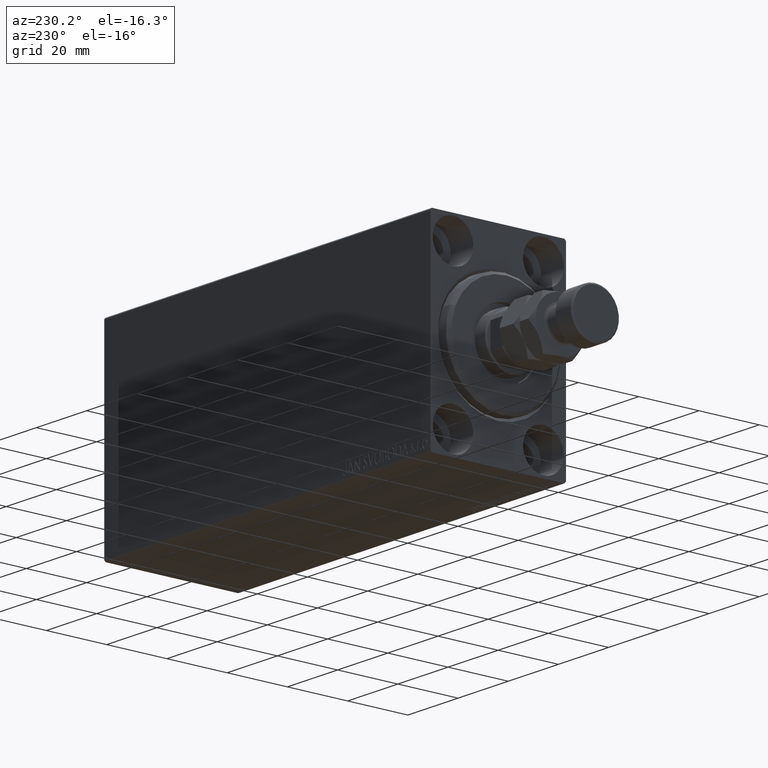
[diagram: clean part render]
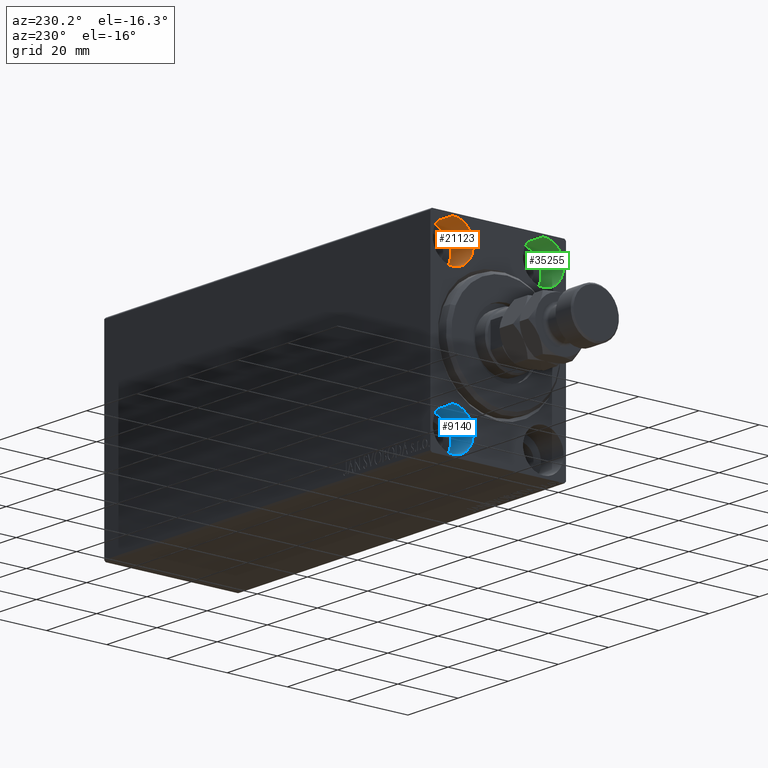
[diagram: same view with three faces highlighted in distinct colors, each labeled with its STEP entity id]
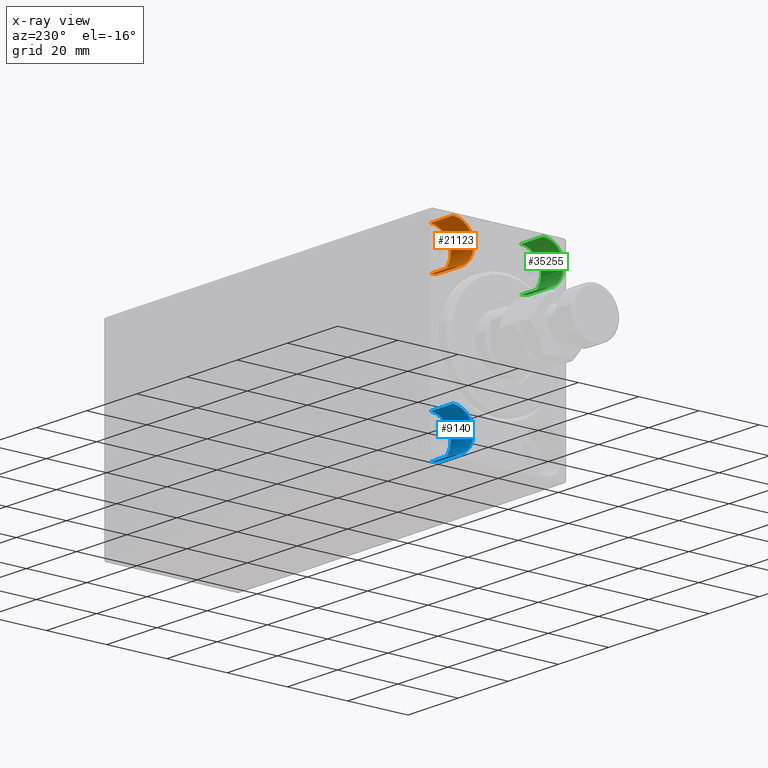
[diagram: x-ray of the same camera — body ghosted, the three highlighted faces saturated]
A machine part, auxiliary view with three faces highlighted in distinct colors.
The next image is the same camera in x-ray (body ghosted, the three faces saturated) — at least one of them is partly hidden behind the body in this view.
Their STEP definitions:

[orange] entity #21123 — the highlighted cylindrical surface (edge-blend (fillet) strip) has radius 6.75 mm, axis along (-1, -0, -0).
#509 = DIRECTION ( 'NONE',  ( -1.000000000000000000, -0.000000000000000000, -0.000000000000000000 ) ) ;
#1371 = CARTESIAN_POINT ( 'NONE',  ( 9.000000000000000000, 15.00000000000000355, 25.00000000000000000 ) ) ;
#2535 = ORIENTED_EDGE ( 'NONE', *, *, #34007, .F. ) ;
#2601 = ORIENTED_EDGE ( 'NONE', *, *, #32101, .T. ) ;
#3166 = DIRECTION ( 'NONE',  ( -1.000000000000000000, 0.000000000000000000, 0.000000000000000000 ) ) ;
#3688 = DIRECTION ( 'NONE',  ( -1.000000000000000000, -0.000000000000000000, -0.000000000000000000 ) ) ;
#4657 = AXIS2_PLACEMENT_3D ( 'NONE', #32010, #509, #42336 ) ;
#6366 = CIRCLE ( 'NONE', #12189, 6.749999999999999112 ) ;
#9179 = DIRECTION ( 'NONE',  ( -1.000000000000000000, 0.000000000000000000, 0.000000000000000000 ) ) ;
#9975 = VERTEX_POINT ( 'NONE', #31419 ) ;
#11439 = ORIENTED_EDGE ( 'NONE', *, *, #17094, .T. ) ;
#12189 = AXIS2_PLACEMENT_3D ( 'NONE', #1371, #9179, #33328 ) ;
#15468 = CARTESIAN_POINT ( 'NONE',  ( 9.000000000000000000, 15.00000000000000355, 31.75000000000000000 ) ) ;
#17094 = EDGE_CURVE ( 'NONE', #41558, #38821, #19980, .T. ) ;
#17134 = EDGE_LOOP ( 'NONE', ( #2535, #2601, #11439, #32503 ) ) ;
#17496 = LINE ( 'NONE', #30246, #20979 ) ;
#17714 = VERTEX_POINT ( 'NONE', #15468 ) ;
#17734 = FACE_OUTER_BOUND ( 'NONE', #17134, .T. ) ;
#19767 = EDGE_CURVE ( 'NONE', #17714, #38821, #28054, .T. ) ;
#19980 = CIRCLE ( 'NONE', #32455, 6.749999999999999112 ) ;
#20979 = VECTOR ( 'NONE', #44260, 1000.000000000000000 ) ;
#21123 = ADVANCED_FACE ( 'NONE', ( #17734 ), #28323, .F. ) ;
#21293 = DIRECTION ( 'NONE',  ( 0.000000000000000000, 0.000000000000000000, 1.000000000000000000 ) ) ;
#27966 = CARTESIAN_POINT ( 'NONE',  ( 0.000000000000000000, 15.00000000000000355, 25.00000000000000000 ) ) ;
#28054 = LINE ( 'NONE', #31746, #35442 ) ;
#28323 = CYLINDRICAL_SURFACE ( 'NONE', #4657, 6.749999999999999112 ) ;
#30246 = CARTESIAN_POINT ( 'NONE',  ( 9.000000000000000000, 15.00000000000000355, 18.25000000000000355 ) ) ;
#31419 = CARTESIAN_POINT ( 'NONE',  ( 9.000000000000000000, 15.00000000000000355, 18.25000000000000355 ) ) ;
#31746 = CARTESIAN_POINT ( 'NONE',  ( 9.000000000000000000, 15.00000000000000355, 31.75000000000000000 ) ) ;
#32010 = CARTESIAN_POINT ( 'NONE',  ( 9.000000000000000000, 15.00000000000000355, 25.00000000000000000 ) ) ;
#32101 = EDGE_CURVE ( 'NONE', #9975, #41558, #17496, .T. ) ;
#32455 = AXIS2_PLACEMENT_3D ( 'NONE', #27966, #3166, #21293 ) ;
#32503 = ORIENTED_EDGE ( 'NONE', *, *, #19767, .F. ) ;
#33328 = DIRECTION ( 'NONE',  ( 0.000000000000000000, 0.000000000000000000, 1.000000000000000000 ) ) ;
#34007 = EDGE_CURVE ( 'NONE', #9975, #17714, #6366, .T. ) ;
#35442 = VECTOR ( 'NONE', #3688, 1000.000000000000000 ) ;
#38821 = VERTEX_POINT ( 'NONE', #41855 ) ;
#41558 = VERTEX_POINT ( 'NONE', #42450 ) ;
#41855 = CARTESIAN_POINT ( 'NONE',  ( 0.000000000000000000, 15.00000000000000355, 31.75000000000000000 ) ) ;
#42336 = DIRECTION ( 'NONE',  ( 0.000000000000000000, 0.000000000000000000, 1.000000000000000000 ) ) ;
#42450 = CARTESIAN_POINT ( 'NONE',  ( 0.000000000000000000, 15.00000000000000355, 18.25000000000000355 ) ) ;
#44260 = DIRECTION ( 'NONE',  ( -1.000000000000000000, -0.000000000000000000, -0.000000000000000000 ) ) ;

[blue] entity #9140 — the highlighted cylindrical surface (edge-blend (fillet) strip) has radius 6.75 mm, axis along (-1, -0, -0).
#903 = EDGE_CURVE ( 'NONE', #41180, #28959, #18293, .T. ) ;
#1919 = ORIENTED_EDGE ( 'NONE', *, *, #903, .F. ) ;
#2219 = VERTEX_POINT ( 'NONE', #4141 ) ;
#4141 = CARTESIAN_POINT ( 'NONE',  ( 9.000000000000000000, 14.99999999999999645, -31.75000000000000000 ) ) ;
#4253 = DIRECTION ( 'NONE',  ( -1.000000000000000000, -0.000000000000000000, -0.000000000000000000 ) ) ;
#4296 = DIRECTION ( 'NONE',  ( 0.000000000000000000, 0.000000000000000000, 1.000000000000000000 ) ) ;
#4789 = CARTESIAN_POINT ( 'NONE',  ( 0.000000000000000000, 14.99999999999999645, -31.75000000000000000 ) ) ;
#6004 = AXIS2_PLACEMENT_3D ( 'NONE', #43514, #29052, #11803 ) ;
#6654 = AXIS2_PLACEMENT_3D ( 'NONE', #28655, #21975, #4296 ) ;
#6775 = ORIENTED_EDGE ( 'NONE', *, *, #33647, .T. ) ;
#7515 = FACE_OUTER_BOUND ( 'NONE', #33222, .T. ) ;
#9140 = ADVANCED_FACE ( 'NONE', ( #7515 ), #27586, .F. ) ;
#9792 = CARTESIAN_POINT ( 'NONE',  ( 0.000000000000000000, 14.99999999999999645, -18.25000000000000355 ) ) ;
#11475 = CARTESIAN_POINT ( 'NONE',  ( 9.000000000000000000, 14.99999999999999645, -18.25000000000000355 ) ) ;
#11803 = DIRECTION ( 'NONE',  ( 0.000000000000000000, 0.000000000000000000, 1.000000000000000000 ) ) ;
#13583 = DIRECTION ( 'NONE',  ( 0.000000000000000000, 0.000000000000000000, 1.000000000000000000 ) ) ;
#17746 = EDGE_CURVE ( 'NONE', #2219, #41180, #25799, .T. ) ;
#18293 = LINE ( 'NONE', #35574, #44693 ) ;
#18833 = EDGE_CURVE ( 'NONE', #31651, #28959, #36873, .T. ) ;
#18926 = CARTESIAN_POINT ( 'NONE',  ( 9.000000000000000000, 14.99999999999999645, -31.75000000000000000 ) ) ;
#20915 = DIRECTION ( 'NONE',  ( -1.000000000000000000, 0.000000000000000000, 0.000000000000000000 ) ) ;
#21975 = DIRECTION ( 'NONE',  ( -1.000000000000000000, -0.000000000000000000, -0.000000000000000000 ) ) ;
#23211 = VECTOR ( 'NONE', #4253, 1000.000000000000000 ) ;
#25058 = ORIENTED_EDGE ( 'NONE', *, *, #17746, .F. ) ;
#25799 = CIRCLE ( 'NONE', #6004, 6.749999999999999112 ) ;
#25832 = LINE ( 'NONE', #18926, #23211 ) ;
#25871 = AXIS2_PLACEMENT_3D ( 'NONE', #35178, #20915, #13583 ) ;
#27586 = CYLINDRICAL_SURFACE ( 'NONE', #6654, 6.749999999999999112 ) ;
#28653 = DIRECTION ( 'NONE',  ( -1.000000000000000000, -0.000000000000000000, -0.000000000000000000 ) ) ;
#28655 = CARTESIAN_POINT ( 'NONE',  ( 9.000000000000000000, 14.99999999999999645, -25.00000000000000000 ) ) ;
#28959 = VERTEX_POINT ( 'NONE', #9792 ) ;
#29052 = DIRECTION ( 'NONE',  ( -1.000000000000000000, 0.000000000000000000, 0.000000000000000000 ) ) ;
#29139 = ORIENTED_EDGE ( 'NONE', *, *, #18833, .T. ) ;
#31651 = VERTEX_POINT ( 'NONE', #4789 ) ;
#33222 = EDGE_LOOP ( 'NONE', ( #25058, #6775, #29139, #1919 ) ) ;
#33647 = EDGE_CURVE ( 'NONE', #2219, #31651, #25832, .T. ) ;
#35178 = CARTESIAN_POINT ( 'NONE',  ( 0.000000000000000000, 14.99999999999999645, -25.00000000000000000 ) ) ;
#35574 = CARTESIAN_POINT ( 'NONE',  ( 9.000000000000000000, 14.99999999999999645, -18.25000000000000355 ) ) ;
#36873 = CIRCLE ( 'NONE', #25871, 6.749999999999999112 ) ;
#41180 = VERTEX_POINT ( 'NONE', #11475 ) ;
#43514 = CARTESIAN_POINT ( 'NONE',  ( 9.000000000000000000, 14.99999999999999645, -25.00000000000000000 ) ) ;
#44693 = VECTOR ( 'NONE', #28653, 1000.000000000000000 ) ;

[green] entity #35255 — the highlighted cylindrical surface (edge-blend (fillet) strip) has radius 6.75 mm, axis along (-1, -0, -0).
#659 = VERTEX_POINT ( 'NONE', #1130 ) ;
#1130 = CARTESIAN_POINT ( 'NONE',  ( 9.000000000000000000, -14.99999999999999645, 18.25000000000000355 ) ) ;
#1776 = DIRECTION ( 'NONE',  ( -1.000000000000000000, 0.000000000000000000, 0.000000000000000000 ) ) ;
#2242 = AXIS2_PLACEMENT_3D ( 'NONE', #30511, #10254, #2917 ) ;
#2282 = LINE ( 'NONE', #44342, #31028 ) ;
#2917 = DIRECTION ( 'NONE',  ( 0.000000000000000000, 0.000000000000000000, 1.000000000000000000 ) ) ;
#3878 = CIRCLE ( 'NONE', #38391, 6.749999999999999112 ) ;
#4388 = ORIENTED_EDGE ( 'NONE', *, *, #43318, .F. ) ;
#4623 = LINE ( 'NONE', #33353, #5530 ) ;
#5278 = CIRCLE ( 'NONE', #22890, 6.749999999999999112 ) ;
#5530 = VECTOR ( 'NONE', #36783, 1000.000000000000000 ) ;
#5959 = DIRECTION ( 'NONE',  ( -1.000000000000000000, -0.000000000000000000, -0.000000000000000000 ) ) ;
#6147 = FACE_OUTER_BOUND ( 'NONE', #10127, .T. ) ;
#10127 = EDGE_LOOP ( 'NONE', ( #14454, #32810, #21113, #4388 ) ) ;
#10254 = DIRECTION ( 'NONE',  ( -1.000000000000000000, -0.000000000000000000, -0.000000000000000000 ) ) ;
#11885 = VERTEX_POINT ( 'NONE', #45386 ) ;
#13864 = EDGE_CURVE ( 'NONE', #659, #11885, #5278, .T. ) ;
#14454 = ORIENTED_EDGE ( 'NONE', *, *, #13864, .F. ) ;
#16928 = CYLINDRICAL_SURFACE ( 'NONE', #2242, 6.749999999999999112 ) ;
#18345 = CARTESIAN_POINT ( 'NONE',  ( 0.000000000000000000, -14.99999999999999645, 18.25000000000000355 ) ) ;
#19294 = EDGE_CURVE ( 'NONE', #40503, #35940, #3878, .T. ) ;
#21113 = ORIENTED_EDGE ( 'NONE', *, *, #19294, .T. ) ;
#21809 = DIRECTION ( 'NONE',  ( -1.000000000000000000, 0.000000000000000000, 0.000000000000000000 ) ) ;
#22890 = AXIS2_PLACEMENT_3D ( 'NONE', #32398, #21809, #35848 ) ;
#30511 = CARTESIAN_POINT ( 'NONE',  ( 9.000000000000000000, -14.99999999999999645, 25.00000000000000000 ) ) ;
#31028 = VECTOR ( 'NONE', #5959, 1000.000000000000000 ) ;
#31317 = EDGE_CURVE ( 'NONE', #659, #40503, #4623, .T. ) ;
#32398 = CARTESIAN_POINT ( 'NONE',  ( 9.000000000000000000, -14.99999999999999645, 25.00000000000000000 ) ) ;
#32810 = ORIENTED_EDGE ( 'NONE', *, *, #31317, .T. ) ;
#33353 = CARTESIAN_POINT ( 'NONE',  ( 9.000000000000000000, -14.99999999999999645, 18.25000000000000355 ) ) ;
#35255 = ADVANCED_FACE ( 'NONE', ( #6147 ), #16928, .F. ) ;
#35848 = DIRECTION ( 'NONE',  ( 0.000000000000000000, 0.000000000000000000, 1.000000000000000000 ) ) ;
#35940 = VERTEX_POINT ( 'NONE', #40271 ) ;
#36704 = CARTESIAN_POINT ( 'NONE',  ( 0.000000000000000000, -14.99999999999999645, 25.00000000000000000 ) ) ;
#36783 = DIRECTION ( 'NONE',  ( -1.000000000000000000, -0.000000000000000000, -0.000000000000000000 ) ) ;
#38391 = AXIS2_PLACEMENT_3D ( 'NONE', #36704, #1776, #43819 ) ;
#40271 = CARTESIAN_POINT ( 'NONE',  ( 0.000000000000000000, -14.99999999999999645, 31.75000000000000000 ) ) ;
#40503 = VERTEX_POINT ( 'NONE', #18345 ) ;
#43318 = EDGE_CURVE ( 'NONE', #11885, #35940, #2282, .T. ) ;
#43819 = DIRECTION ( 'NONE',  ( 0.000000000000000000, 0.000000000000000000, 1.000000000000000000 ) ) ;
#44342 = CARTESIAN_POINT ( 'NONE',  ( 9.000000000000000000, -14.99999999999999645, 31.75000000000000000 ) ) ;
#45386 = CARTESIAN_POINT ( 'NONE',  ( 9.000000000000000000, -14.99999999999999645, 31.75000000000000000 ) ) ;